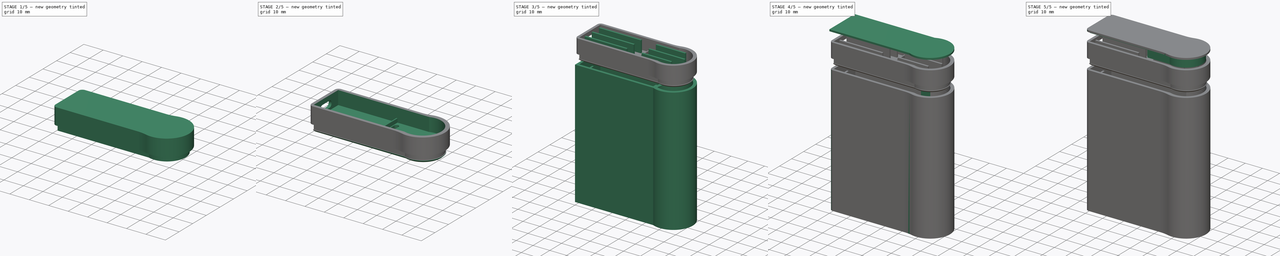
[diagram: build sequence overview — one tinted view per stage of 5, left to right]
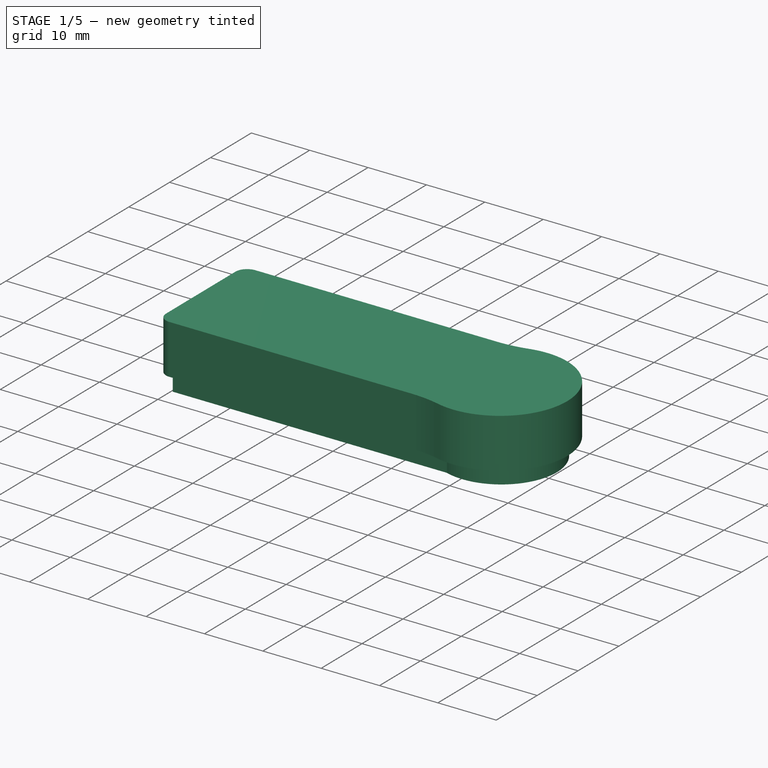
[diagram: stage 1 of 5 — iso view after this stage's code; geometry added in this stage tinted green]
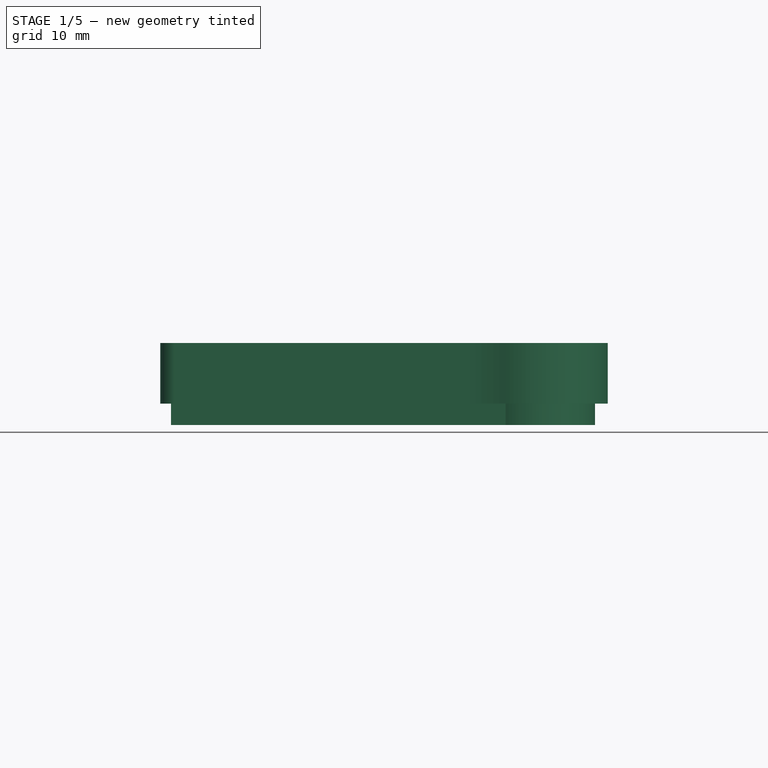
[diagram: stage 1 of 5 — front view after this stage's code; geometry added in this stage tinted green]
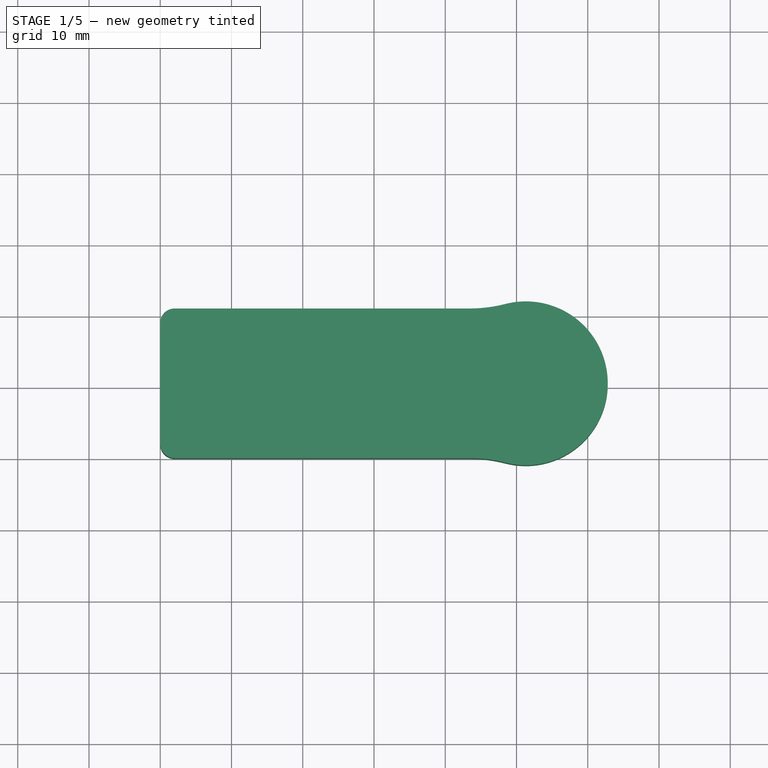
[diagram: stage 1 of 5 — top view after this stage's code; geometry added in this stage tinted green]
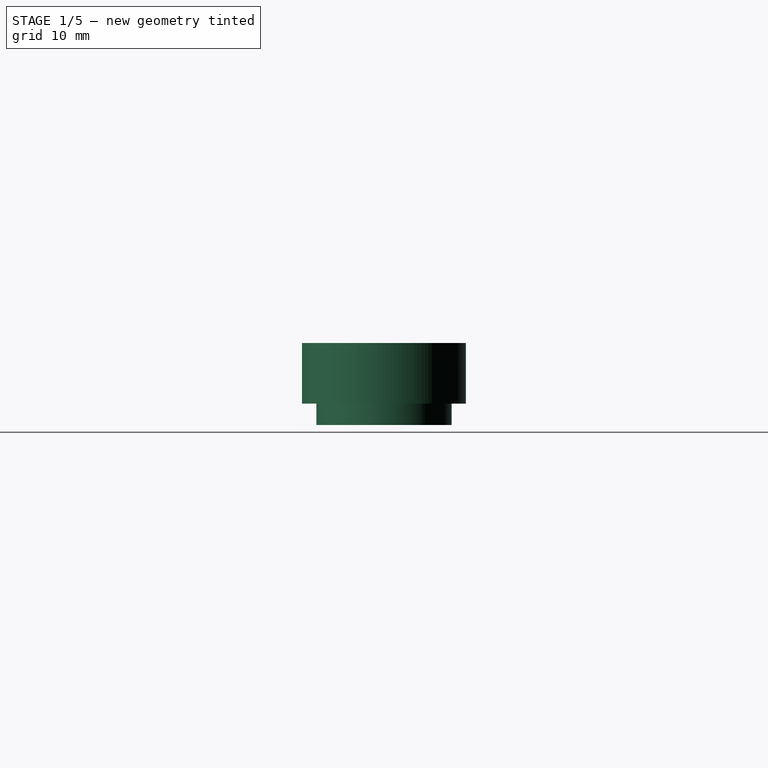
[diagram: stage 1 of 5 — right view after this stage's code; geometry added in this stage tinted green]
FCSTD DOCUMENT  (FreeCAD 0.16R6706 (Git))
Label: opas3_assembly
License: All rights reserved
LicenseURL: http://en.wikipedia.org/wiki/All_rights_reserved
objects: Sketcher::SketchObject×17, PartDesign::Fillet×12, PartDesign::Pad×9, PartDesign::Pocket×7, App::DocumentObjectGroup×3, Part::Feature×2, PartDesign::Chamfer×1
note: 64 computed .brp shape members not serialized (recipe doc carries the construction recipe); baked Part::Feature solids carry a one-line shape summary decoded from their .brp

FEATURE [Sketcher::SketchObject] Sketch004  label="root001"
  Placement = pos=(0,0,80) rot=(0,0,1;0rad)
  sketch-geometry (4):
    g0: LineSegment StartX=0.000990743 StartY=21 StartZ=0 EndX=46.6158 EndY=21 EndZ=0
    g1: LineSegment StartX=46.6158 StartY=0 StartZ=0 EndX=0.000990743 EndY=0 EndZ=0
    g2: LineSegment StartX=0.000990743 StartY=0 StartZ=0 EndX=0.000990743 EndY=21 EndZ=0
    g3: ArcOfCircle CenterX=51.3062 CenterY=10.5 CenterZ=0 NormalX=0 NormalY=0 NormalZ=1 Radius=11.5 StartAngle=4.29228 EndAngle=8.27409
  constraints (14):
    c: Coincident(g1,g2)
    c: Coincident(g2,g0)
    c: Horizontal(g0)
    c: Horizontal(g1)
    c: Vertical(g2)
    c: PointOnObject(g1,g-1)
    c: PointOnObject(g3,g-1)
    c: Radius(g3) = 11.5
    c: Coincident(g3,g0)
    c: Coincident(g3,g1)
    c: Distance(g1,g0) = 21
    c: Equal(g0,g1)
    c: Distance(g0) = 46.6148
    c: Equal(g1,g0)
FEATURE [PartDesign::Pad] Pad001
  Length = 8.5
  Length2 = 100
  Placement = pos=(0,0,80) rot=(0,0,1;0rad)
  Sketch = -> Sketch004
  Type = 0
FEATURE [Sketcher::SketchObject] Sketch005  label="Deckelschnitt001"
  Placement = pos=(0,0,80) rot=(1,0,0;3.14159rad)
  Support = -> Pad001 [Face5]
  sketch-geometry (4):
    g0: LineSegment StartX=1.50207 StartY=-19.5003 StartZ=0 EndX=48.4771 EndY=-19.5003 EndZ=0
    g1: ArcOfCircle CenterX=51.5184 CenterY=-10.5003 CenterZ=0 NormalX=0 NormalY=0 NormalZ=1 Radius=9.5 StartAngle=4.38651 EndAngle=8.17986
    g2: LineSegment StartX=1.50207 StartY=-1.50028 StartZ=0 EndX=48.4771 EndY=-1.50028 EndZ=0
    g3: LineSegment StartX=1.50207 StartY=-1.50028 StartZ=0 EndX=1.50207 EndY=-19.5003 EndZ=0
  constraints (11):
    c: Radius(g1) = 9.5
    c: Coincident(g1,g0)
    c: Coincident(g2,g1)
    c: Coincident(g3,g0)
    c: Coincident(g3,g2)
    c: Parallel(g2,g0)
    c: Angle(g3,g2,g2) = 1.5708
    c: Distance(g3) = 18
    c: Parallel(g3,g-2)
    c: Distance(g2) = 46.975
    c: Equal(g2,g0)
FEATURE [PartDesign::Pad] Pad002
  Length = 3
  Length2 = 100
  Placement = pos=(0,0,80) rot=(0,0,1;0rad)
  Sketch = -> Sketch005
  Type = 0
FEATURE [PartDesign::Fillet] Fillet008
  Base = -> Pad002 [Edge5]
  Placement = pos=(0,0,80) rot=(0,0,1;0rad)
  Radius = 20
FEATURE [PartDesign::Fillet] Fillet009
  Base = -> Fillet008 [Edge3]
  Placement = pos=(0,0,80) rot=(0,0,1;0rad)
  Radius = 20
FEATURE [PartDesign::Fillet] Fillet010
  Base = -> Fillet009 [Edge21]
  Placement = pos=(0,0,80) rot=(0,0,1;0rad)
  Radius = 2
FEATURE [PartDesign::Fillet] Fillet011
  Base = -> Fillet010 [Edge19]
  Placement = pos=(0,0,80) rot=(0,0,1;0rad)
  Radius = 2
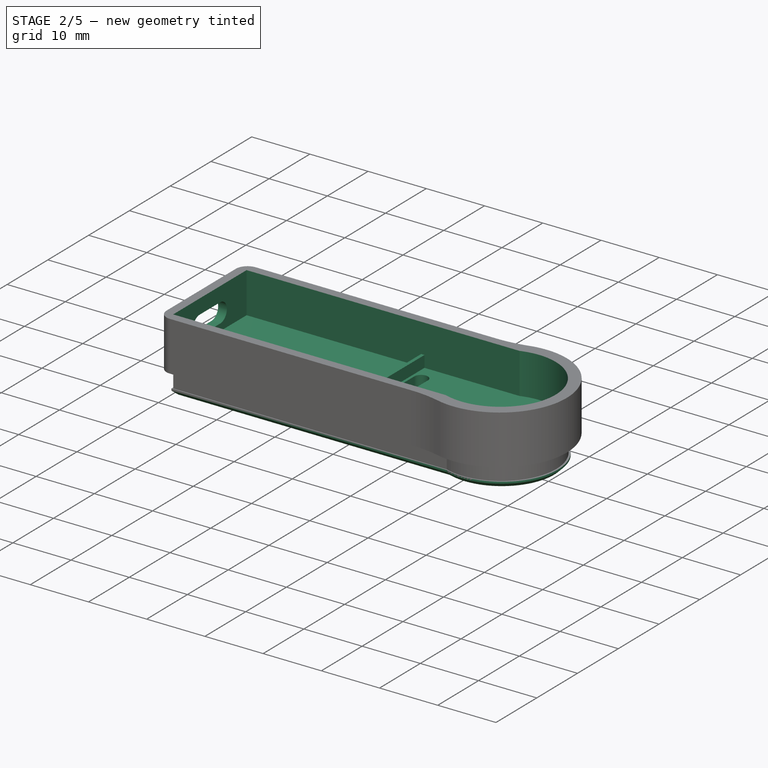
[diagram: stage 2 of 5 — iso view after this stage's code; geometry added in this stage tinted green]
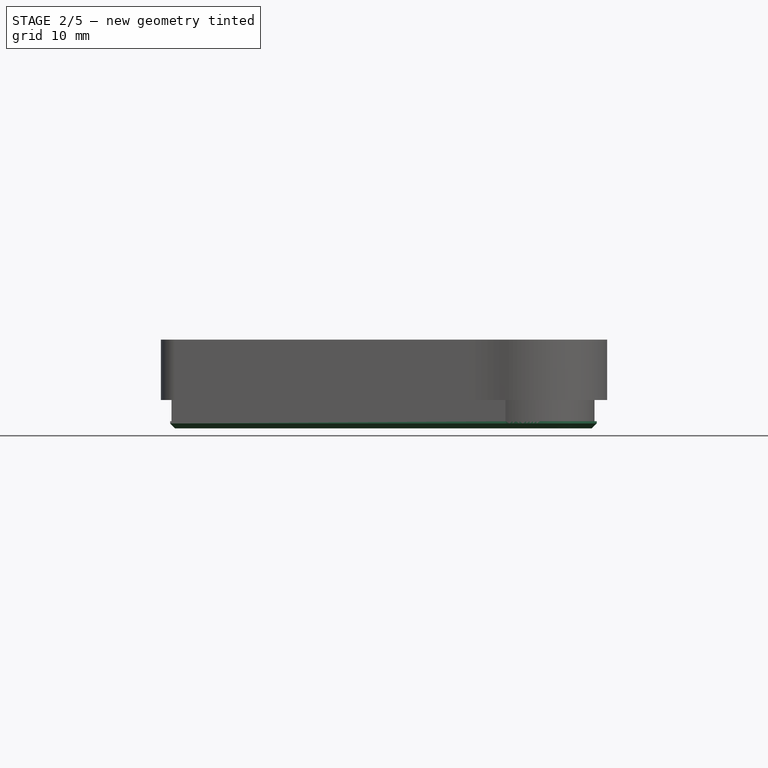
[diagram: stage 2 of 5 — front view after this stage's code; geometry added in this stage tinted green]
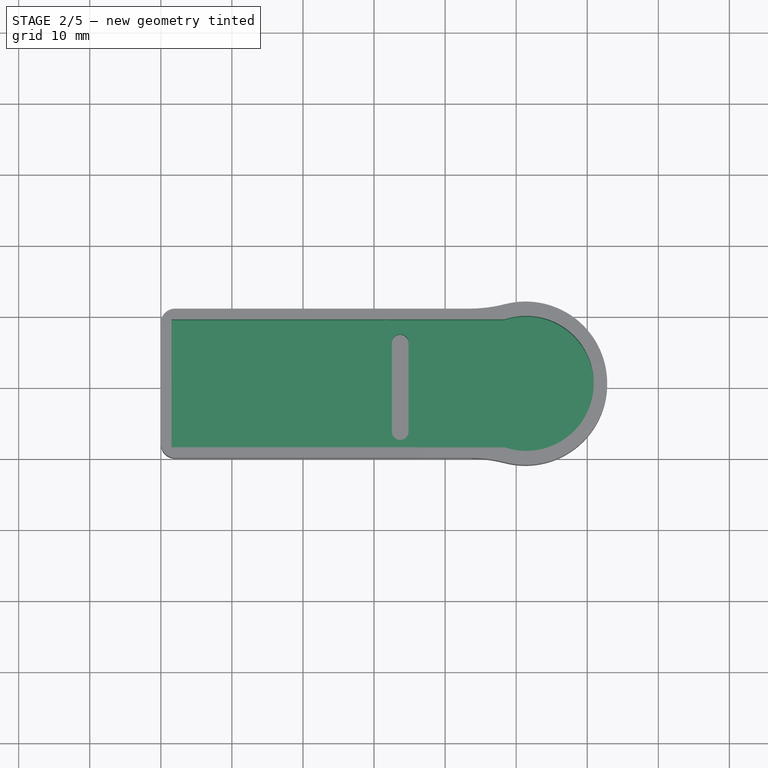
[diagram: stage 2 of 5 — top view after this stage's code; geometry added in this stage tinted green]
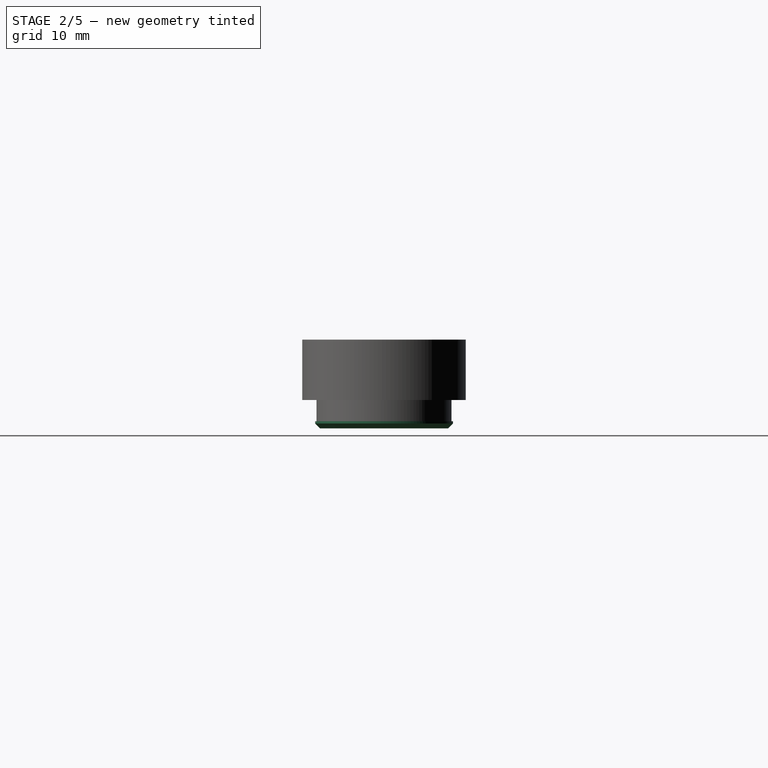
[diagram: stage 2 of 5 — right view after this stage's code; geometry added in this stage tinted green]
FEATURE [Sketcher::SketchObject] Sketch006  label="Deckelschnitt002"
  Placement = pos=(0,0,88.5) rot=(0,0,1;0rad)
  Support = -> Fillet011 [Face14]
  sketch-geometry (4):
    g0: LineSegment StartX=1.50042 StartY=1.49087 StartZ=0 EndX=48.3882 EndY=1.47697 EndZ=0
    g1: ArcOfCircle CenterX=51.409 CenterY=10.4839 CenterZ=0 NormalX=0 NormalY=0 NormalZ=1 Radius=9.5 StartAngle=4.3888 EndAngle=8.17757
    g2: LineSegment StartX=1.50042 StartY=19.4909 StartZ=0 EndX=48.3882 EndY=19.4909 EndZ=0
    g3: LineSegment StartX=1.50042 StartY=19.4909 StartZ=0 EndX=1.50042 EndY=1.49087 EndZ=0
  constraints (10):
    c: Radius(g1) = 9.5
    c: Coincident(g1,g0)
    c: Coincident(g2,g1)
    c: Coincident(g3,g0)
    c: Coincident(g3,g2)
    c: Distance(g0,g2) = 18
    c: Angle(g3,g2,g2) = 1.5708
    c: Equal(g0,g2)
    c: Parallel(g3,g-2)
    c: Equal(g2,g0)
FEATURE [PartDesign::Pocket] Pocket002
  Length = 7
  Placement = pos=(0,0,80) rot=(0,0,1;0rad)
  Sketch = -> Sketch006
  Type = 0
FEATURE [Sketcher::SketchObject] Sketch007
  Placement = pos=(0.000990743,0,80) rot=(0.57735,-0.57735,-0.57735;2.0944rad)
  Support = -> Pocket002 [Face2]
  sketch-geometry (4):
    g0: ArcOfCircle CenterX=-13.0075 CenterY=4.331 CenterZ=0 NormalX=0 NormalY=0 NormalZ=1 Radius=1.64885 StartAngle=1.5708 EndAngle=4.71239
    g1: ArcOfCircle CenterX=-8.00134 CenterY=4.331 CenterZ=0 NormalX=0 NormalY=0 NormalZ=1 Radius=1.64885 StartAngle=4.71239 EndAngle=7.85398
    g2: LineSegment StartX=-13.0075 StartY=2.68215 StartZ=0 EndX=-8.00134 EndY=2.68215 EndZ=0
    g3: LineSegment StartX=-13.0075 StartY=5.97985 StartZ=0 EndX=-8.00134 EndY=5.97985 EndZ=0
  constraints (6):
    c: Tangent(g0,g3) = 1.5708
    c: Tangent(g0,g2) = -1.5708
    c: Tangent(g2,g1) = -1.5708
    c: Tangent(g3,g1) = 1.5708
    c: Horizontal(g2)
    c: Equal(g0,g1)
FEATURE [PartDesign::Pocket] Pocket003
  Length = 5
  Placement = pos=(0,0,80) rot=(0,0,1;0rad)
  Sketch = -> Sketch007
  Type = 0
FEATURE [App::DocumentObjectGroup] Gruppe002  label="Deckel2"
  Group = -> [Pad003,Pad004,Fillet012,Fillet013,Fillet014,Fillet015,Pad005]
FEATURE [Sketcher::SketchObject] Sketch012
  Placement = pos=(0,0,81.5) rot=(0,0,1;0rad)
  Support = -> Pocket003 [Face24]
  sketch-geometry (4):
    g0: LineSegment StartX=31.4985 StartY=19.4967 StartZ=0 EndX=31.4985 EndY=1.45296 EndZ=0
    g1: LineSegment StartX=32.0485 StartY=1.45296 StartZ=0 EndX=31.4985 EndY=1.45296 EndZ=0
    g2: LineSegment StartX=32.0485 StartY=1.45296 StartZ=0 EndX=32.0596 EndY=19.4967 EndZ=0
    g3: LineSegment StartX=31.4985 StartY=19.4967 StartZ=0 EndX=32.0596 EndY=19.4967 EndZ=0
  constraints (6):
    c: Parallel(g-2,g0)
    c: Coincident(g0,g1)
    c: Angle(g1,g0) = 1.5708
    c: Coincident(g1,g2)
    c: Coincident(g2,g3)
    c: Coincident(g3,g0)
FEATURE [PartDesign::Pad] Pad006
  Length = 2
  Length2 = 100
  Placement = pos=(0,0,80) rot=(0,0,1;0rad)
  Sketch = -> Sketch012
  Type = 0
FEATURE [Part::Feature] Pocket007  label="NS_LOGO1"
  Placement = pos=(1.5,1,75) rot=(1,0,0;1.5708rad)
  shape: bbox 33.5 x 1.2 x 39.19 mm, 46 faces (baked)
FEATURE [Part::Feature] Pocket008  label="NS_LOGO2"
  Placement = pos=(45,20,75) rot=(0,0.707107,0.707107;3.14159rad)
  shape: bbox 33.5 x 1.2 x 39.19 mm, 46 faces (baked)
FEATURE [App::DocumentObjectGroup] Gruppe  label="Gehause"
  Group = -> [Pad,Pocket,Sketch003,Pocket001,Fillet,Fillet001,Fillet002,Fillet003,Pocket005,Pocket007,Pocket008]
FEATURE [PartDesign::Pocket] Pocket004
  Length = 5
  Placement = pos=(0,0,80) rot=(0,0,1;0rad)
  Sketch = -> Sketch013
  Type = 0
FEATURE [Sketcher::SketchObject] Sketch015
  Placement = pos=(0,0,77) rot=(1,0,0;3.14159rad)
  Support = -> Pocket004 [Face19]
  sketch-geometry (4):
    g0: LineSegment StartX=1.31116 StartY=-1.30923 StartZ=0 EndX=48.5612 EndY=-1.30923 EndZ=0
    g1: LineSegment StartX=48.5612 StartY=-19.7092 StartZ=0 EndX=1.31116 EndY=-19.7092 EndZ=0
    g2: LineSegment StartX=1.31116 StartY=-19.7092 StartZ=0 EndX=1.31116 EndY=-1.30923 EndZ=0
    g3: ArcOfCircle CenterX=51.6352 CenterY=-10.5092 CenterZ=0 NormalX=0 NormalY=0 NormalZ=1 Radius=9.7 StartAngle=4.38991 EndAngle=8.17646
  constraints (11):
    c: Coincident(g1,g2)
    c: Coincident(g2,g0)
    c: Horizontal(g0)
    c: Horizontal(g1)
    c: Vertical(g2)
    c: Distance(g0,g1) = 18.4
    c: Radius(g3) = 9.7
    c: Coincident(g3,g1)
    c: Coincident(g3,g0)
    c: Equal(g1,g0)
    c: Distance(g0,g0) = 47.25
FEATURE [PartDesign::Pad] Pad007
  Length = 1
  Length2 = 100
  Placement = pos=(0,0,80) rot=(0,0,1;0rad)
  Sketch = -> Sketch015
  Type = 0
FEATURE [PartDesign::Chamfer] Chamfer
  Base = -> Pad007 [Edge79,Edge80,Edge75,Edge77]
  Placement = pos=(0,0,80) rot=(0,0,1;0rad)
  Size = 0.7
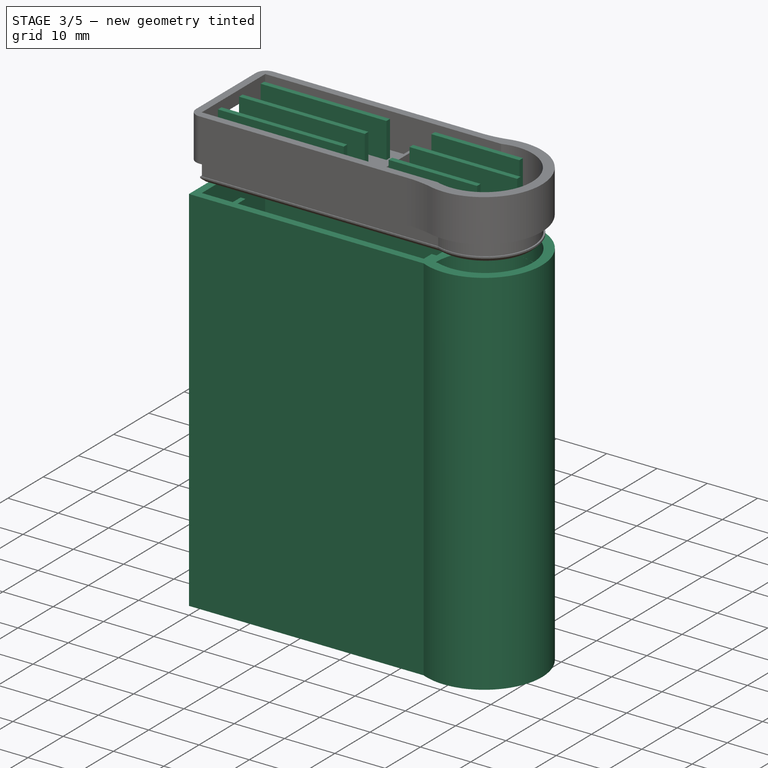
[diagram: stage 3 of 5 — iso view after this stage's code; geometry added in this stage tinted green]
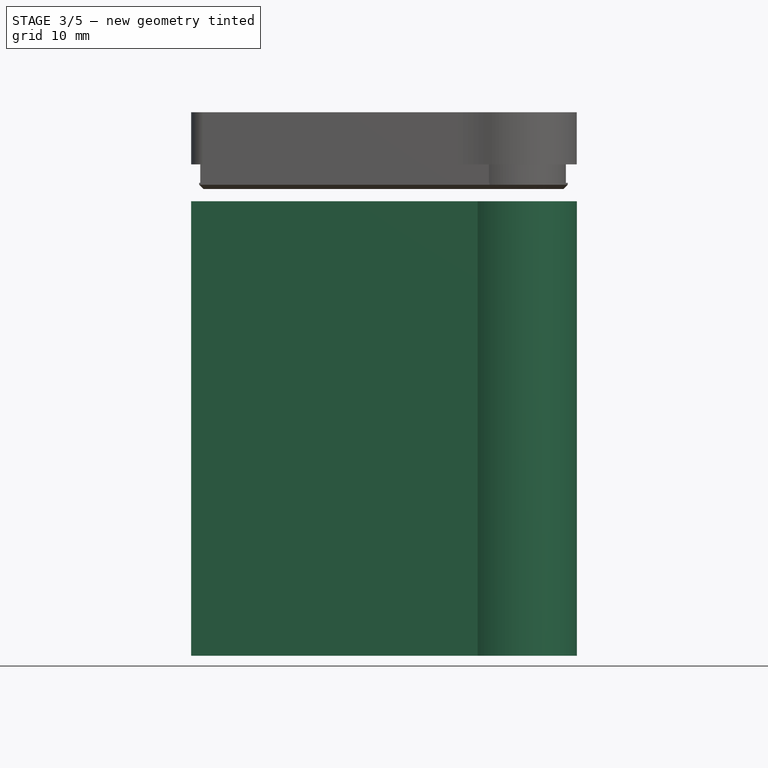
[diagram: stage 3 of 5 — front view after this stage's code; geometry added in this stage tinted green]
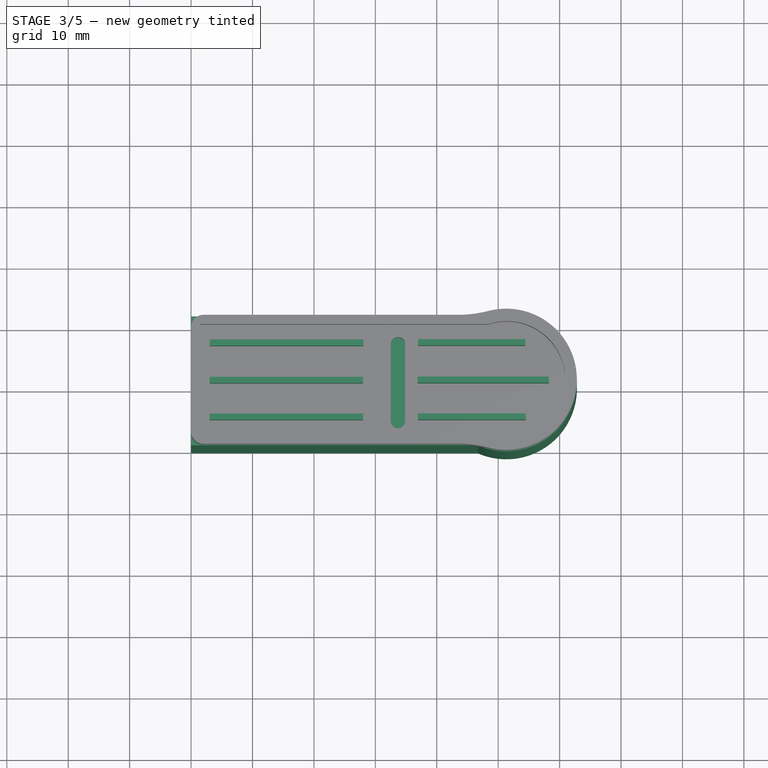
[diagram: stage 3 of 5 — top view after this stage's code; geometry added in this stage tinted green]
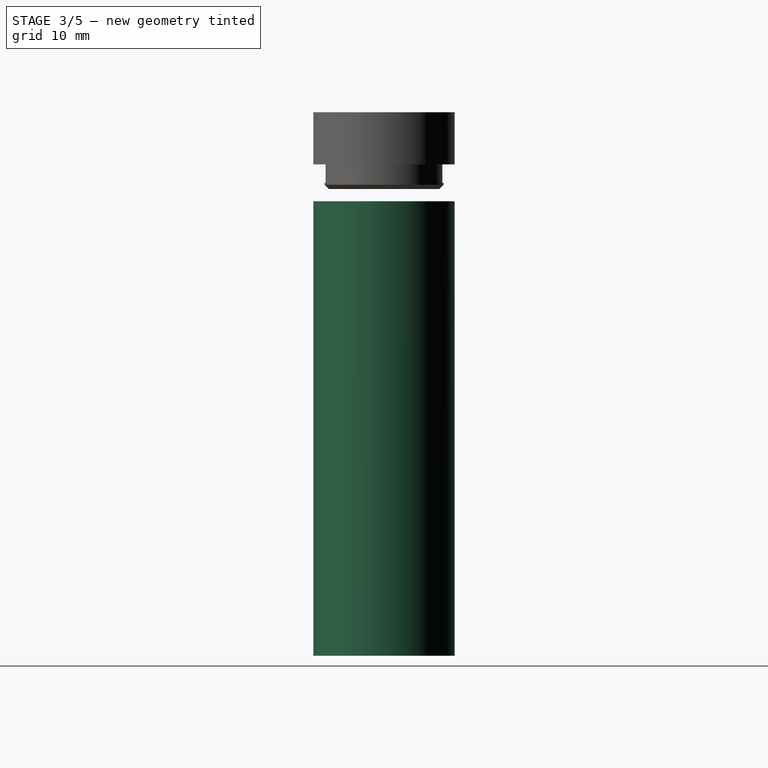
[diagram: stage 3 of 5 — right view after this stage's code; geometry added in this stage tinted green]
FEATURE [Sketcher::SketchObject] Sketch002  label="Grundplatte"
  sketch-geometry (4):
    g0: LineSegment StartX=0 StartY=21 StartZ=0 EndX=46.6148 EndY=21 EndZ=0
    g1: LineSegment StartX=46.6481 StartY=0 StartZ=0 EndX=0 EndY=0 EndZ=0
    g2: LineSegment StartX=0 StartY=0 StartZ=0 EndX=0 EndY=21 EndZ=0
    g3: ArcOfCircle CenterX=51.3218 CenterY=10.5074 CenterZ=0 NormalX=0 NormalY=0 NormalZ=1 Radius=11.5 StartAngle=4.29387 EndAngle=8.27568
  constraints (12):
    c: Coincident(g1,g2)
    c: Coincident(g2,g0)
    c: Horizontal(g0)
    c: Horizontal(g1)
    c: Vertical(g2)
    c: PointOnObject(g1,g-1)
    c: PointOnObject(g3,g-1)
    c: Radius(g3) = 11.5
    c: Coincident(g3,g0)
    c: Coincident(g3,g1)
    c: Distance(g1,g0) = 21
    c: Distance(g0) = 46.6148
FEATURE [PartDesign::Pad] Pad
  Length = 74
  Length2 = 100
  Sketch = -> Sketch002
  Type = 0
FEATURE [Sketcher::SketchObject] Sketch  label="Deckelschnitt"
  Placement = pos=(0,0,74) rot=(0,0,1;0rad)
  Support = -> Pad [Face6]
  sketch-geometry (4):
    g0: LineSegment StartX=1.50203 StartY=1.4966 StartZ=0 EndX=48.477 EndY=1.4966 EndZ=0
    g1: ArcOfCircle CenterX=51.5184 CenterY=10.4966 CenterZ=0 NormalX=0 NormalY=0 NormalZ=1 Radius=9.5 StartAngle=4.38651 EndAngle=8.17986
    g2: LineSegment StartX=1.50203 StartY=19.4966 StartZ=0 EndX=48.477 EndY=19.4966 EndZ=0
    g3: LineSegment StartX=1.50203 StartY=19.4966 StartZ=0 EndX=1.50203 EndY=1.4966 EndZ=0
  constraints (11):
    c: Radius(g1) = 9.5
    c: Coincident(g1,g0)
    c: Coincident(g2,g1)
    c: Equal(g2,g0)
    c: Parallel(g0,g-1)
    c: Distance(g1,g2) = 46.975
    c: Coincident(g3,g0)
    c: Coincident(g3,g2)
    c: Angle(g0,g3) = 1.5708
    c: Parallel(g2,g0)
    c: Distance(g3) = 18
FEATURE [PartDesign::Pocket] Pocket
  Length = 5
  Sketch = -> Sketch
  Type = 0
FEATURE [Sketcher::SketchObject] Sketch001  label="Base"
  Placement = pos=(0,0,69) rot=(0,0,1;0rad)
  Support = -> Pocket [Face11]
  sketch-geometry (9):
    g0: Circle CenterX=51.3543 CenterY=10.5 CenterZ=0 NormalX=0 NormalY=0 NormalZ=1 Radius=9.5
    g1: LineSegment StartX=1.48737 StartY=19.5069 StartZ=0 EndX=40.4873 EndY=19.5492 EndZ=0
    g2: LineSegment StartX=1.48737 StartY=19.5069 StartZ=0 EndX=1.47173 EndY=12.5069 EndZ=0
    g3: LineSegment StartX=40.4873 StartY=19.5492 StartZ=0 EndX=40.4716 EndY=12.5058 EndZ=0
    g4: LineSegment StartX=1.47173 StartY=12.5069 StartZ=0 EndX=2.47173 EndY=12.5047 EndZ=0
    g5: LineSegment StartX=2.47173 StartY=12.5047 StartZ=0 EndX=2.50492 EndY=1.50473 EndZ=0
    g6: LineSegment StartX=2.50492 StartY=1.50473 StartZ=0 EndX=39.5048 EndY=1.50473 EndZ=0
    g7: LineSegment StartX=39.4716 StartY=12.5047 StartZ=0 EndX=39.5048 EndY=1.50473 EndZ=0
    g8: LineSegment StartX=40.4716 StartY=12.5058 StartZ=0 EndX=39.4716 EndY=12.5047 EndZ=0
  constraints (20):
    c: Radius(g0) = 9.5
    c: Distance(g1,g1) = 39
    c: Coincident(g3,g1)
    c: Coincident(g2,g1)
    c: Parallel(g2,g3)
    c: Coincident(g4,g2)
    c: Distance(g4,g2) = 1
    c: Angle(g4,g2) = 1.5708
    c: Coincident(g5,g4)
    c: Distance(g5) = 11
    c: Distance(g2) = 7
    c: Coincident(g6,g5)
    c: Coincident(g7,g8)
    c: Equal(g5,g7) = 11
    c: Coincident(g8,g3)
    c: Coincident(g7,g6)
    c: Distance(g8) = 1
    c: Parallel(g7,g5)
    c: Parallel(g8,g1)
    c: Parallel(g6,g-1)
FEATURE [Sketcher::SketchObject] Sketch003  label="root"
  Placement = pos=(0,0,69) rot=(0,0,1;0rad)
  Support = -> Pocket [Face11]
  sketch-geometry (13):
    g0: LineSegment StartX=0.013913 StartY=21 StartZ=0 EndX=46.6638 EndY=21 EndZ=0
    g1: LineSegment StartX=46.6638 StartY=0 StartZ=0 EndX=0.013913 EndY=0 EndZ=0
    g2: LineSegment StartX=0.013913 StartY=0 StartZ=0 EndX=0.013913 EndY=21 EndZ=0
    g3: ArcOfCircle CenterX=51.3543 CenterY=10.5 CenterZ=0 NormalX=0 NormalY=0 NormalZ=1 Radius=11.5 StartAngle=4.29228 EndAngle=8.27409
    g4: Circle CenterX=51.3543 CenterY=10.5 CenterZ=0 NormalX=0 NormalY=0 NormalZ=1 Radius=9.5
    g5: LineSegment StartX=1.47417 StartY=19.5481 StartZ=0 EndX=40.4742 EndY=19.5481 EndZ=0
    g6: LineSegment StartX=1.47417 StartY=19.5481 StartZ=0 EndX=1.47417 EndY=12.5481 EndZ=0
    g7: LineSegment StartX=40.4742 StartY=19.5481 StartZ=0 EndX=40.4742 EndY=12.5481 EndZ=0
    g8: LineSegment StartX=1.47417 StartY=12.5481 StartZ=0 EndX=2.47417 EndY=12.5481 EndZ=0
    g9: LineSegment StartX=2.47417 StartY=12.5481 StartZ=0 EndX=2.47417 EndY=1.5481 EndZ=0
    g10: LineSegment StartX=2.47417 StartY=1.5481 StartZ=0 EndX=39.4742 EndY=1.5481 EndZ=0
    g11: LineSegment StartX=39.4742 StartY=12.5481 StartZ=0 EndX=39.4742 EndY=1.5481 EndZ=0
    g12: LineSegment StartX=40.4742 StartY=12.5481 StartZ=0 EndX=39.4742 EndY=12.5481 EndZ=0
  constraints (36):
    c: Coincident(g1,g2)
    c: Coincident(g2,g0)
    c: Horizontal(g0)
    c: Horizontal(g1)
    c: Vertical(g2)
    c: PointOnObject(g1,g-1)
    c: PointOnObject(g3,g-1)
    c: Radius(g3) = 11.5
    c: Coincident(g3,g0)
    c: Coincident(g3,g1)
    c: Distance(g1,g0) = 21
    c: Radius(g4) = 9.5
    c: Coincident(g4,g3)
    c: Distance(g5,g5) = 39
    c: Parallel(g5,g0)
    c: Coincident(g7,g5)
    c: Coincident(g6,g5)
    c: Parallel(g6,g2)
    c: Parallel(g6,g7)
    c: Coincident(g8,g6)
    c: Distance(g8,g6) = 1
    c: Angle(g8,g6) = 1.5708
    c: Coincident(g9,g8)
    c: Parallel(g9,g2)
    c: Distance(g9) = 11
    c: Distance(g6) = 7
    c: Parallel(g10,g1)
    c: Coincident(g10,g9)
    c: Coincident(g11,g12)
    c: Equal(g9,g11) = 11
    c: Coincident(g12,g7)
    c: Coincident(g11,g10)
    c: Distance(g12) = 1
    c: Parallel(g11,g9)
    c: Parallel(g12,g5)
    c: Equal(g0,g1)
FEATURE [PartDesign::Pocket] Pocket001
  Length = 67
  Sketch = -> Sketch001
  Type = 0
FEATURE [Sketcher::SketchObject] Sketch016
  Placement = pos=(0,0,77) rot=(0,0,1;0rad)
  Support = -> Chamfer [Face42]
  sketch-geometry (4):
    g0: ArcOfCircle CenterX=33.6802 CenterY=16.3417 CenterZ=0 NormalX=0 NormalY=0 NormalZ=1 Radius=1.16346 StartAngle=0 EndAngle=3.14159
    g1: ArcOfCircle CenterX=33.6802 CenterY=3.81589 CenterZ=0 NormalX=0 NormalY=0 NormalZ=1 Radius=1.16346 StartAngle=3.14159 EndAngle=6.28319
    g2: LineSegment StartX=32.5168 StartY=16.3417 StartZ=0 EndX=32.5168 EndY=3.81589 EndZ=0
    g3: LineSegment StartX=34.8437 StartY=16.3417 StartZ=0 EndX=34.8437 EndY=3.81589 EndZ=0
  constraints (6):
    c: Tangent(g0,g3) = 1.5708
    c: Tangent(g0,g2) = -1.5708
    c: Tangent(g2,g1) = -1.5708
    c: Tangent(g3,g1) = 1.5708
    c: Vertical(g2)
    c: Equal(g0,g1)
FEATURE [PartDesign::Pocket] Pocket009
  Length = 5
  Placement = pos=(0,0,80) rot=(0,0,1;0rad)
  Sketch = -> Sketch016
  Type = 0
FEATURE [Sketcher::SketchObject] Sketch017
  Placement = pos=(0,0,81.5) rot=(0,0,1;0rad)
  Support = -> Pocket009 [Face32]
  sketch-geometry (24):
    g0: LineSegment StartX=3.04684 StartY=16.9995 StartZ=0 EndX=28.0468 EndY=16.9995 EndZ=0
    g1: LineSegment StartX=28.0468 StartY=16.9995 StartZ=0 EndX=28.0468 EndY=15.9995 EndZ=0
    g2: LineSegment StartX=28.0468 StartY=15.9995 StartZ=0 EndX=3.04684 EndY=15.9995 EndZ=0
    g3: LineSegment StartX=3.04684 StartY=15.9995 StartZ=0 EndX=3.04684 EndY=16.9995 EndZ=0
    g4: LineSegment StartX=3.01242 StartY=10.9083 StartZ=0 EndX=28.0124 EndY=10.9083 EndZ=0
    g5: LineSegment StartX=28.0124 StartY=10.9083 StartZ=0 EndX=28.0124 EndY=9.90827 EndZ=0
    g6: LineSegment StartX=28.0124 StartY=9.90827 StartZ=0 EndX=3.01242 EndY=9.90827 EndZ=0
    g7: LineSegment StartX=3.01242 StartY=9.90827 StartZ=0 EndX=3.01242 EndY=10.9083 EndZ=0
    g8: LineSegment StartX=3.01242 StartY=4.92026 StartZ=0 EndX=28.0124 EndY=4.92026 EndZ=0
    g9: LineSegment StartX=28.0124 StartY=4.92026 StartZ=0 EndX=28.0124 EndY=3.92027 EndZ=0
    g10: LineSegment StartX=28.0124 StartY=3.92027 StartZ=0 EndX=3.01242 EndY=3.92027 EndZ=0
    g11: LineSegment StartX=3.01242 StartY=3.92027 StartZ=0 EndX=3.01242 EndY=4.92026 EndZ=0
    g12: LineSegment StartX=36.9513 StartY=17.0359 StartZ=0 EndX=54.4327 EndY=17.0359 EndZ=0
    g13: LineSegment StartX=54.4327 StartY=17.0359 StartZ=0 EndX=54.4327 EndY=16.0359 EndZ=0
    g14: LineSegment StartX=54.4327 StartY=16.0359 StartZ=0 EndX=36.9513 EndY=16.0359 EndZ=0
    g15: LineSegment StartX=36.9513 StartY=16.0359 StartZ=0 EndX=36.9513 EndY=17.0359 EndZ=0
    g16: LineSegment StartX=36.8825 StartY=10.9427 StartZ=0 EndX=58.2578 EndY=10.9427 EndZ=0
    g17: LineSegment StartX=58.2578 StartY=10.9427 StartZ=0 EndX=58.2578 EndY=9.94269 EndZ=0
    g18: LineSegment StartX=58.2578 StartY=9.94269 StartZ=0 EndX=36.8825 EndY=9.94269 EndZ=0
    g19: LineSegment StartX=36.8825 StartY=9.94269 StartZ=0 EndX=36.8825 EndY=10.9427 EndZ=0
    g20: LineSegment StartX=36.9169 StartY=4.95468 StartZ=0 EndX=54.4954 EndY=4.95468 EndZ=0
    g21: LineSegment StartX=54.4954 StartY=4.95468 StartZ=0 EndX=54.4954 EndY=3.95468 EndZ=0
    g22: LineSegment StartX=54.4954 StartY=3.95468 StartZ=0 EndX=36.9169 EndY=3.95468 EndZ=0
    g23: LineSegment StartX=36.9169 StartY=3.95468 StartZ=0 EndX=36.9169 EndY=4.95468 EndZ=0
  constraints (64):
    c: Coincident(g0,g1)
    c: Coincident(g1,g2)
    c: Coincident(g2,g3)
    c: Coincident(g3,g0)
    c: Horizontal(g0)
    c: Horizontal(g2)
    c: Vertical(g1)
    c: Vertical(g3)
    c: Coincident(g4,g5)
    c: Coincident(g5,g6)
    c: Coincident(g6,g7)
    c: Coincident(g7,g4)
    c: Horizontal(g4)
    c: Horizontal(g6)
    c: Vertical(g5)
    c: Vertical(g7)
    c: Coincident(g8,g9)
    c: Coincident(g9,g10)
    c: Coincident(g10,g11)
    c: Coincident(g11,g8)
    c: Horizontal(g8)
    c: Vertical(g9)
    c: Vertical(g11)
    c: Coincident(g12,g13)
    c: Coincident(g13,g14)
    c: Coincident(g14,g15)
    c: Coincident(g15,g12)
    c: Horizontal(g12)
    c: Horizontal(g14)
    c: Vertical(g13)
    c: Vertical(g15)
    c: Coincident(g16,g17)
    c: Coincident(g17,g18)
    c: Coincident(g18,g19)
    c: Coincident(g19,g16)
    c: Horizontal(g16)
    c: Vertical(g17)
    c: Vertical(g19)
    c: Coincident(g20,g21)
    c: Coincident(g21,g22)
    c: Coincident(g22,g23)
    c: Coincident(g23,g20)
    c: Horizontal(g20)
    c: Horizontal(g22)
    c: Vertical(g21)
    c: Vertical(g23)
    c: Equal(g8,g10)
    c: Equal(g10,g6)
    c: Equal(g6,g4)
    c: Equal(g4,g2)
    c: Equal(g2,g0)
    c: Distance(g0,g0) = 25
    c: Equal(g3,g1)
    c: Equal(g1,g5)
    c: Equal(g5,g9)
    c: Equal(g9,g11)
    c: Equal(g11,g7)
    c: Equal(g15,g13)
    c: Equal(g13,g17)
    c: Equal(g17,g19)
    c: Equal(g19,g23)
    c: Equal(g23,g21)
    c: Distance(g12,g14) = 1
    c: Distance(g0,g2) = 1
FEATURE [PartDesign::Pad] Pad008
  Length = 7
  Length2 = 100
  Placement = pos=(0,0,80) rot=(0,0,1;0rad)
  Sketch = -> Sketch017
  Type = 0
FEATURE [App::DocumentObjectGroup] Gruppe001  label="Deckel1"
  Group = -> [Pad001,Pad002,Fillet008,Fillet009,Fillet010,Fillet011,Pocket002,Pocket003,Pad006,Pocket004,Pad007,Chamfer,Pocket009,Pad008]
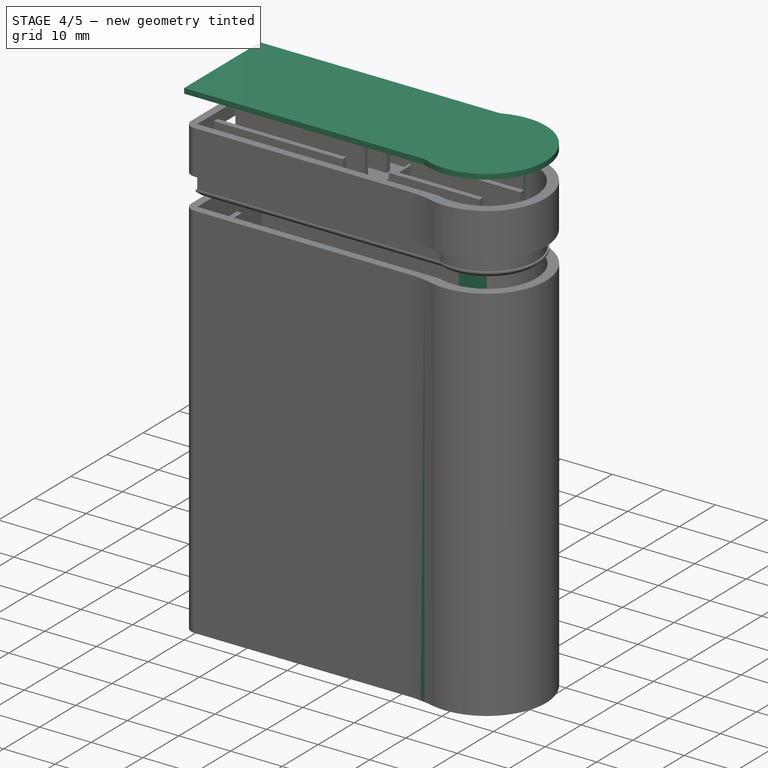
[diagram: stage 4 of 5 — iso view after this stage's code; geometry added in this stage tinted green]
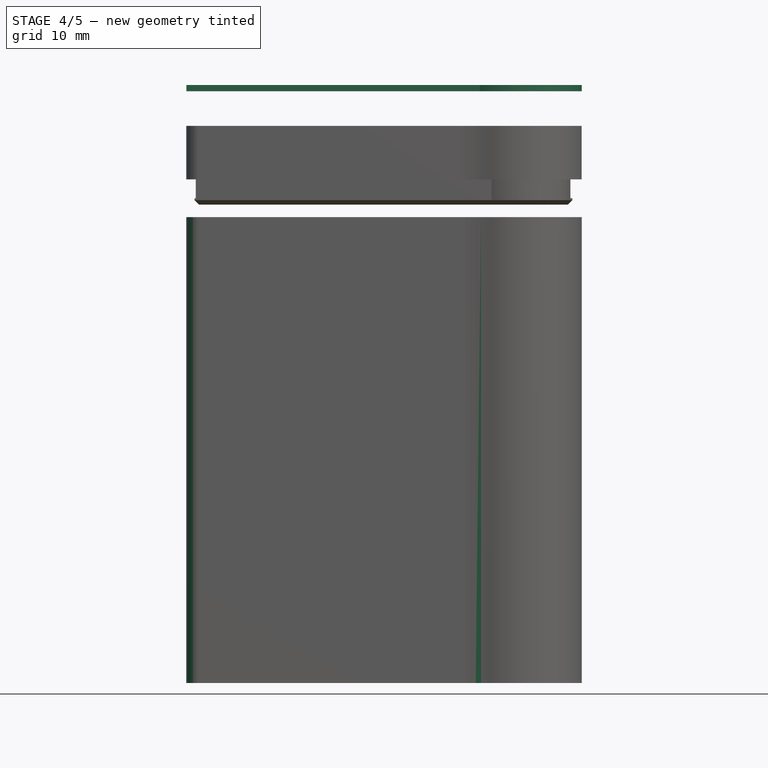
[diagram: stage 4 of 5 — front view after this stage's code; geometry added in this stage tinted green]
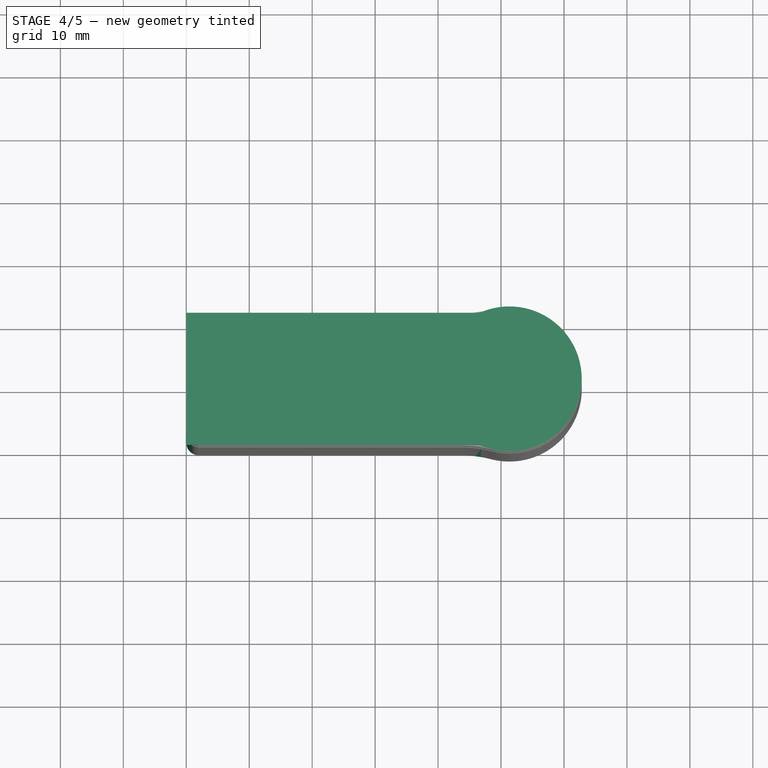
[diagram: stage 4 of 5 — top view after this stage's code; geometry added in this stage tinted green]
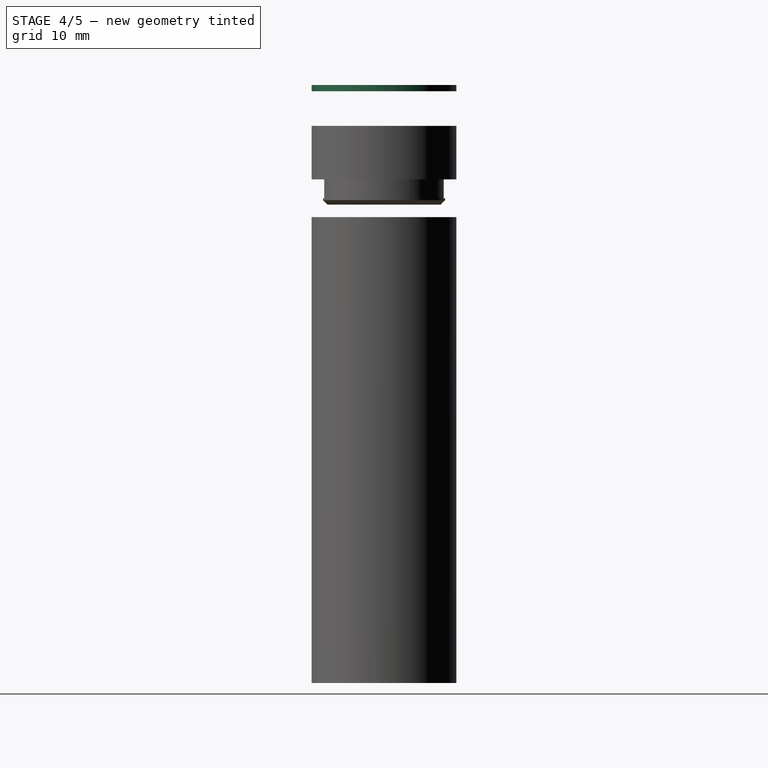
[diagram: stage 4 of 5 — right view after this stage's code; geometry added in this stage tinted green]
FEATURE [PartDesign::Fillet] Fillet
  Base = -> Pocket001 [Edge5]
  Radius = 20
FEATURE [PartDesign::Fillet] Fillet001
  Base = -> Fillet [Edge19]
  Radius = 2
FEATURE [PartDesign::Fillet] Fillet002
  Base = -> Fillet001 [Edge16]
  Radius = 20
FEATURE [PartDesign::Fillet] Fillet003
  Base = -> Fillet002 [Edge15]
  Radius = 2
FEATURE [Sketcher::SketchObject] Sketch008  label="root002"
  Placement = pos=(0,0,94) rot=(0,0,1;0rad)
  sketch-geometry (4):
    g0: LineSegment StartX=0.0126511 StartY=21 StartZ=0 EndX=46.6275 EndY=21 EndZ=0
    g1: LineSegment StartX=46.6275 StartY=0 StartZ=0 EndX=0.0126511 EndY=0 EndZ=0
    g2: LineSegment StartX=0.0126511 StartY=0 StartZ=0 EndX=0.0126511 EndY=21 EndZ=0
    g3: ArcOfCircle CenterX=51.3179 CenterY=10.5 CenterZ=0 NormalX=0 NormalY=0 NormalZ=1 Radius=11.5 StartAngle=4.29228 EndAngle=8.27409
  constraints (14):
    c: Coincident(g1,g2)
    c: Coincident(g2,g0)
    c: Horizontal(g0)
    c: Horizontal(g1)
    c: Vertical(g2)
    c: PointOnObject(g1,g-1)
    c: PointOnObject(g3,g-1)
    c: Radius(g3) = 11.5
    c: Coincident(g3,g0)
    c: Distance(g1,g0) = 21
    c: Equal(g0,g1)
    c: Equal(g0,g1)
    c: Distance(g0,g0) = 46.6148
    c: Coincident(g3,g1)
FEATURE [PartDesign::Pad] Pad003
  Length = 1
  Length2 = 100
  Placement = pos=(0,0,94) rot=(0,0,1;0rad)
  Sketch = -> Sketch008
  Type = 0
FEATURE [Sketcher::SketchObject] Sketch013
  Placement = pos=(0,0,81.5) rot=(0,0,1;0rad)
  Support = -> Pad006 [Face24]
  sketch-geometry (4):
    g0: ArcOfCircle CenterX=33.6802 CenterY=16.3417 CenterZ=0 NormalX=0 NormalY=0 NormalZ=1 Radius=1.16346 StartAngle=0 EndAngle=3.14159
    g1: ArcOfCircle CenterX=33.6802 CenterY=3.81589 CenterZ=0 NormalX=0 NormalY=0 NormalZ=1 Radius=1.16346 StartAngle=3.14159 EndAngle=6.28319
    g2: LineSegment StartX=32.5168 StartY=16.3417 StartZ=0 EndX=32.5168 EndY=3.81589 EndZ=0
    g3: LineSegment StartX=34.8437 StartY=16.3417 StartZ=0 EndX=34.8437 EndY=3.81589 EndZ=0
  constraints (6):
    c: Tangent(g0,g3) = 1.5708
    c: Tangent(g0,g2) = -1.5708
    c: Tangent(g2,g1) = -1.5708
    c: Tangent(g3,g1) = 1.5708
    c: Vertical(g2)
    c: Equal(g0,g1)
FEATURE [Sketcher::SketchObject] Sketch014
  Placement = pos=(0,0,69) rot=(0,0,1;0rad)
  Support = -> Fillet003 [Face19]
  sketch-geometry (4):
    g0: LineSegment StartX=38.8521 StartY=18.2874 StartZ=0 EndX=46.8173 EndY=18.2874 EndZ=0
    g1: LineSegment StartX=46.8173 StartY=18.2874 StartZ=0 EndX=46.8173 EndY=3.12278 EndZ=0
    g2: LineSegment StartX=46.8173 StartY=3.12278 StartZ=0 EndX=38.8521 EndY=3.12278 EndZ=0
    g3: LineSegment StartX=38.8521 StartY=3.12278 StartZ=0 EndX=38.8521 EndY=18.2874 EndZ=0
  constraints (8):
    c: Coincident(g0,g1)
    c: Coincident(g1,g2)
    c: Coincident(g2,g3)
    c: Coincident(g3,g0)
    c: Horizontal(g0)
    c: Horizontal(g2)
    c: Vertical(g1)
    c: Vertical(g3)
FEATURE [PartDesign::Pocket] Pocket005
  Length = 5
  Sketch = -> Sketch014
  Type = 0
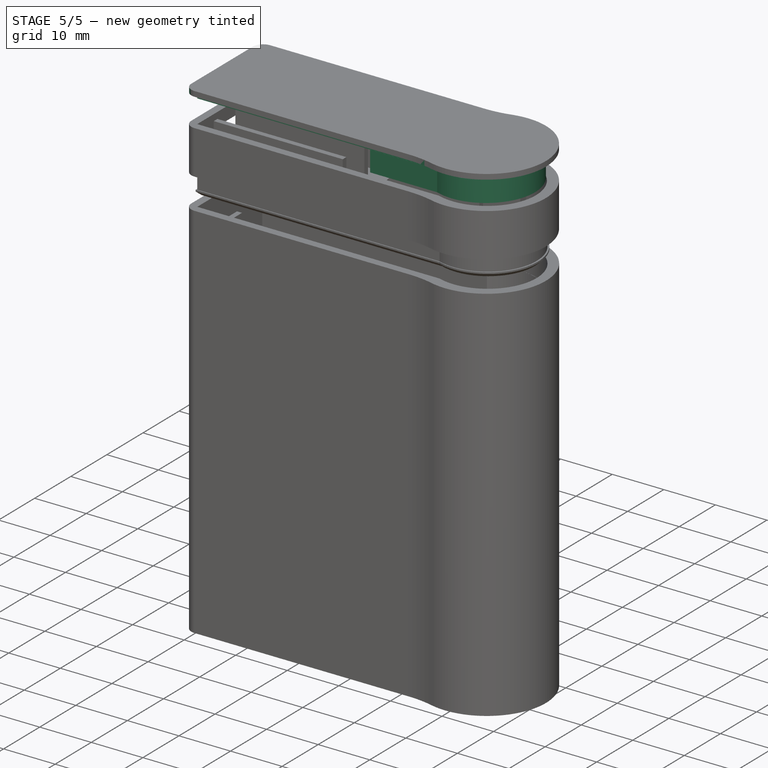
[diagram: stage 5 of 5 — iso view after this stage's code; geometry added in this stage tinted green]
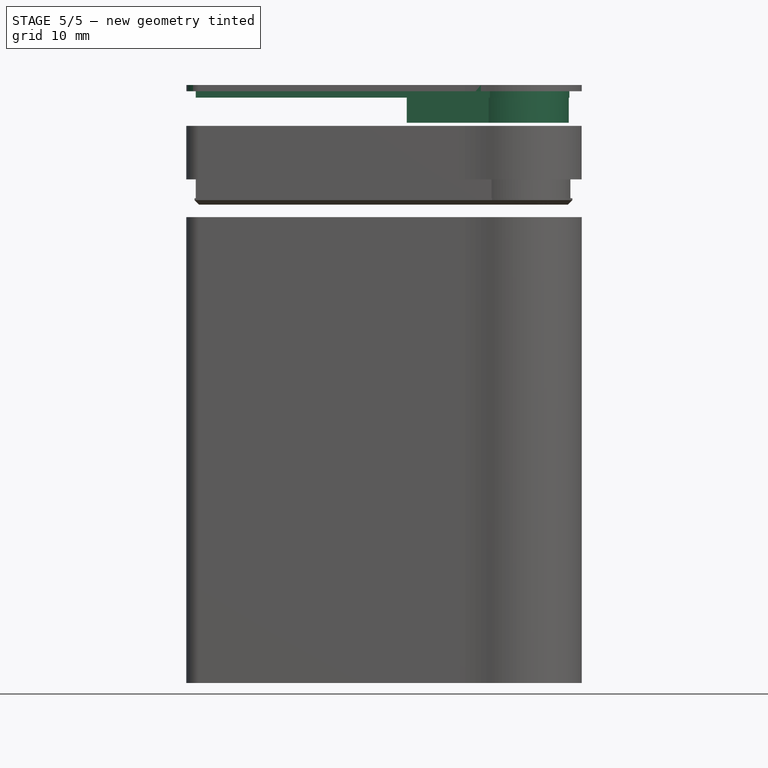
[diagram: stage 5 of 5 — front view after this stage's code; geometry added in this stage tinted green]
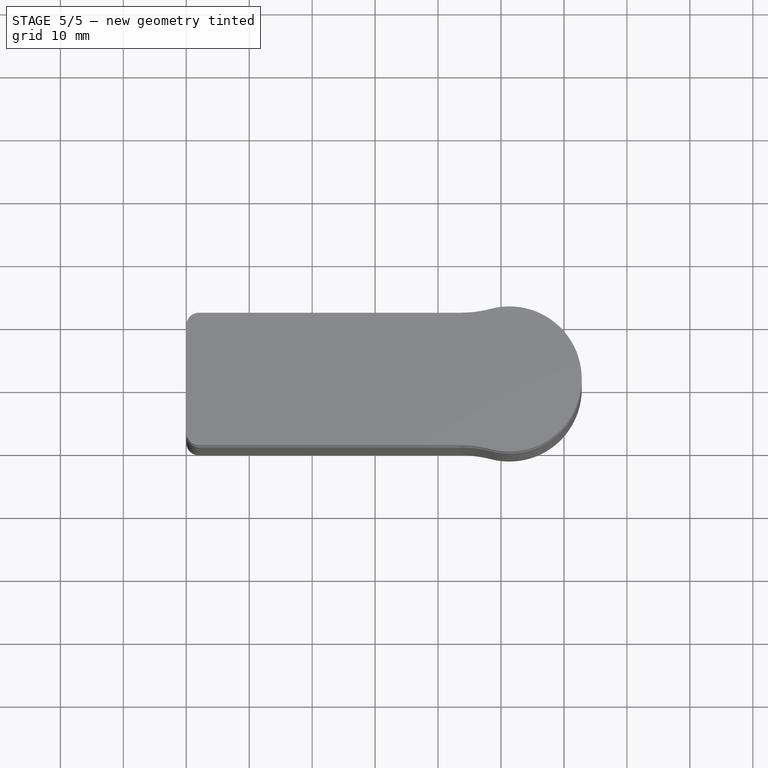
[diagram: stage 5 of 5 — top view after this stage's code; geometry added in this stage tinted green]
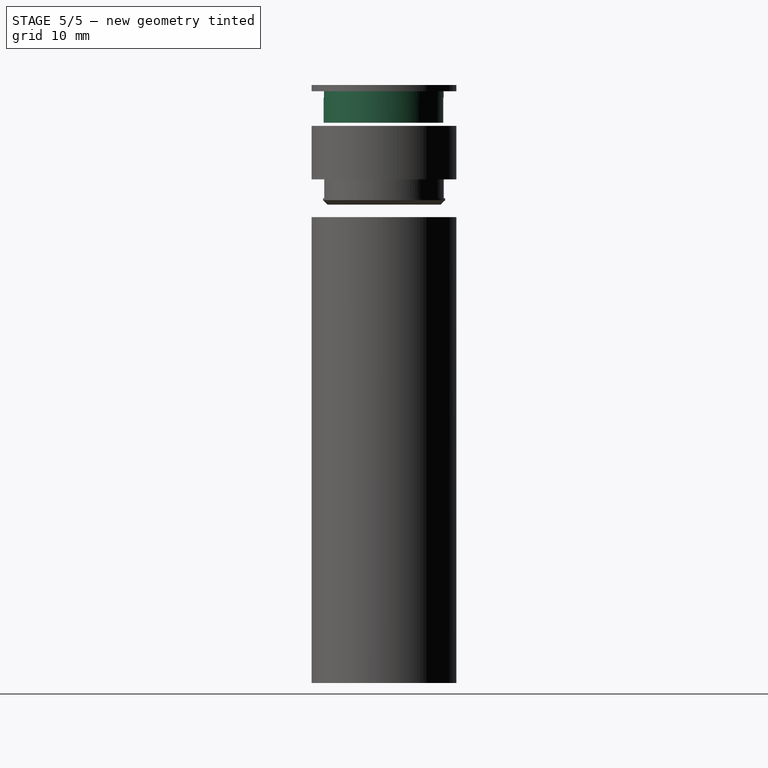
[diagram: stage 5 of 5 — right view after this stage's code; geometry added in this stage tinted green]
FEATURE [Sketcher::SketchObject] Sketch010  label="Deckelschnitt004"
  Placement = pos=(0,0,94) rot=(1,0,0;3.14159rad)
  Support = -> Pad003 [Face5]
  sketch-geometry (4):
    g0: LineSegment StartX=1.50007 StartY=-19.5011 StartZ=0 EndX=48.4013 EndY=-19.5011 EndZ=0
    g1: ArcOfCircle CenterX=51.3577 CenterY=-10.4728 CenterZ=0 NormalX=0 NormalY=0 NormalZ=1 Radius=9.5 StartAngle=4.39593 EndAngle=8.18904
    g2: LineSegment StartX=1.50007 StartY=-1.50111 StartZ=0 EndX=48.2339 EndY=-1.50111 EndZ=0
    g3: LineSegment StartX=1.50007 StartY=-1.50111 StartZ=0 EndX=1.50007 EndY=-19.5011 EndZ=0
  constraints (9):
    c: Radius(g1) = 9.5
    c: Coincident(g1,g0)
    c: Coincident(g2,g1)
    c: Parallel(g2,g0)
    c: Parallel(g2,g-1)
    c: Coincident(g3,g0)
    c: Coincident(g3,g2)
    c: Distance(g2,g0) = 18
    c: Angle(g3,g2) = 1.5708
FEATURE [PartDesign::Pad] Pad004
  Length = 1
  Length2 = 100
  Placement = pos=(0,0,94) rot=(0,0,1;0rad)
  Sketch = -> Sketch010
  Type = 0
FEATURE [PartDesign::Fillet] Fillet012
  Base = -> Pad004 [Edge5]
  Placement = pos=(0,0,94) rot=(0,0,1;0rad)
  Radius = 20
FEATURE [PartDesign::Fillet] Fillet013
  Base = -> Fillet012 [Edge19]
  Placement = pos=(0,0,94) rot=(0,0,1;0rad)
  Radius = 2
FEATURE [PartDesign::Fillet] Fillet014
  Base = -> Fillet013 [Edge18]
  Placement = pos=(0,0,94) rot=(0,0,1;0rad)
  Radius = 2
FEATURE [PartDesign::Fillet] Fillet015
  Base = -> Fillet014 [Edge19]
  Placement = pos=(0,0,94) rot=(0,0,1;0rad)
  Radius = 20
FEATURE [Sketcher::SketchObject] Sketch011  label="Deckelschnitt005"
  Placement = pos=(0,0,93) rot=(1,0,0;3.14159rad)
  Support = -> Fillet015 [Face15]
  sketch-geometry (4):
    g0: LineSegment StartX=35.0994 StartY=-19.489 StartZ=0 EndX=48.4386 EndY=-19.489 EndZ=0
    g1: ArcOfCircle CenterX=51.2625 CenterY=-10.4184 CenterZ=0 NormalX=0 NormalY=0 NormalZ=1 Radius=9.5 StartAngle=4.41057 EndAngle=8.20131
    g2: LineSegment StartX=35.0234 StartY=-1.48568 StartZ=0 EndX=48.0288 EndY=-1.48568 EndZ=0
    g3: LineSegment StartX=35.0234 StartY=-1.48568 StartZ=0 EndX=35.0994 EndY=-19.489 EndZ=0
  constraints (7):
    c: Radius(g1) = 9.5
    c: Coincident(g1,g0)
    c: Coincident(g2,g1)
    c: Parallel(g2,g0)
    c: Parallel(g2,g-1)
    c: Coincident(g3,g0)
    c: Coincident(g3,g2)
FEATURE [PartDesign::Pad] Pad005
  Length = 4
  Length2 = 100
  Placement = pos=(0,0,94) rot=(0,0,1;0rad)
  Sketch = -> Sketch011
  Type = 0
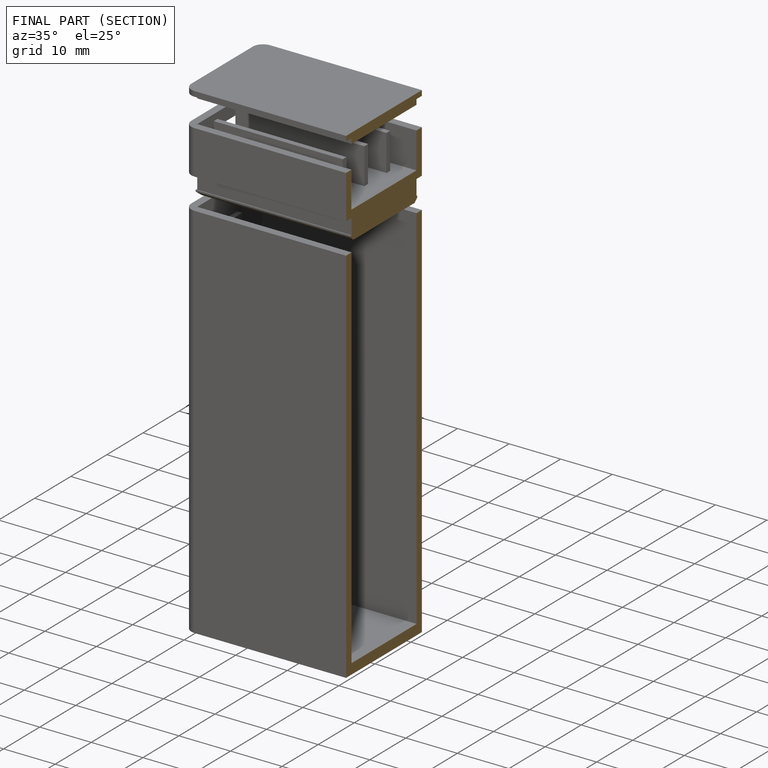
[diagram: finished part — half-section view (interior)]
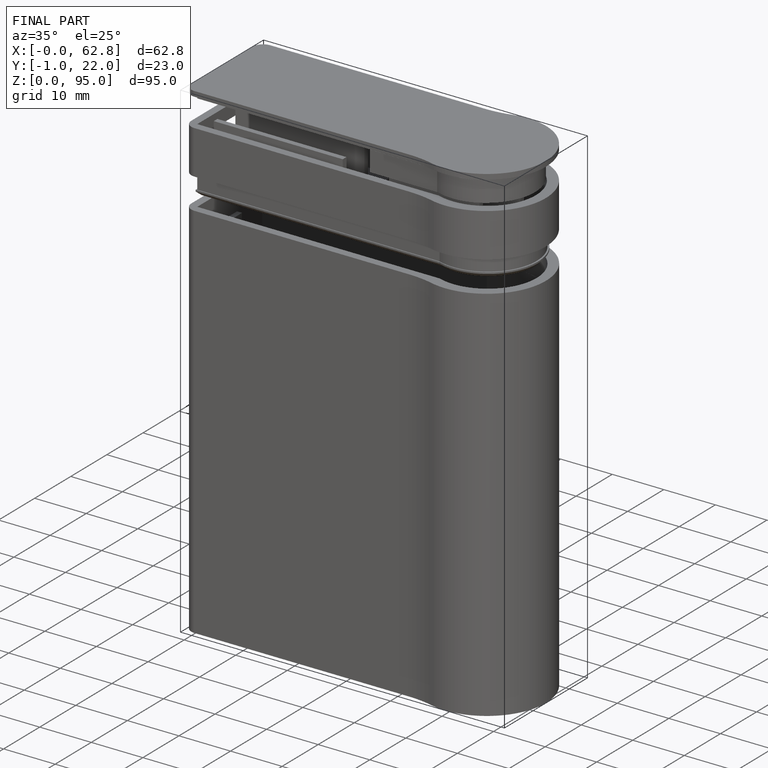
[diagram: finished part — iso view with bounding-box wireframe]
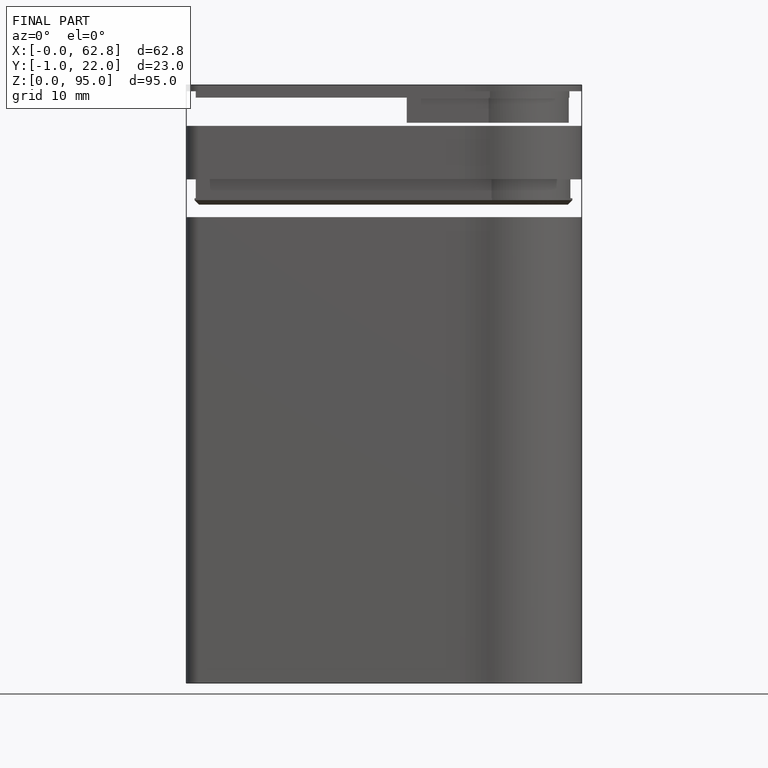
[diagram: finished part — front view with bounding-box wireframe]
